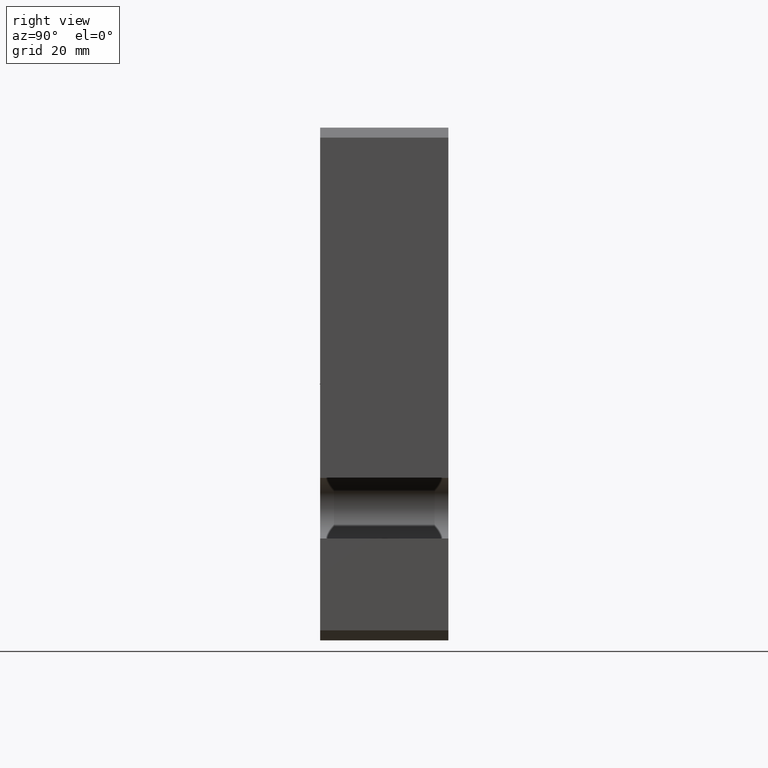
[diagram: clean part render]
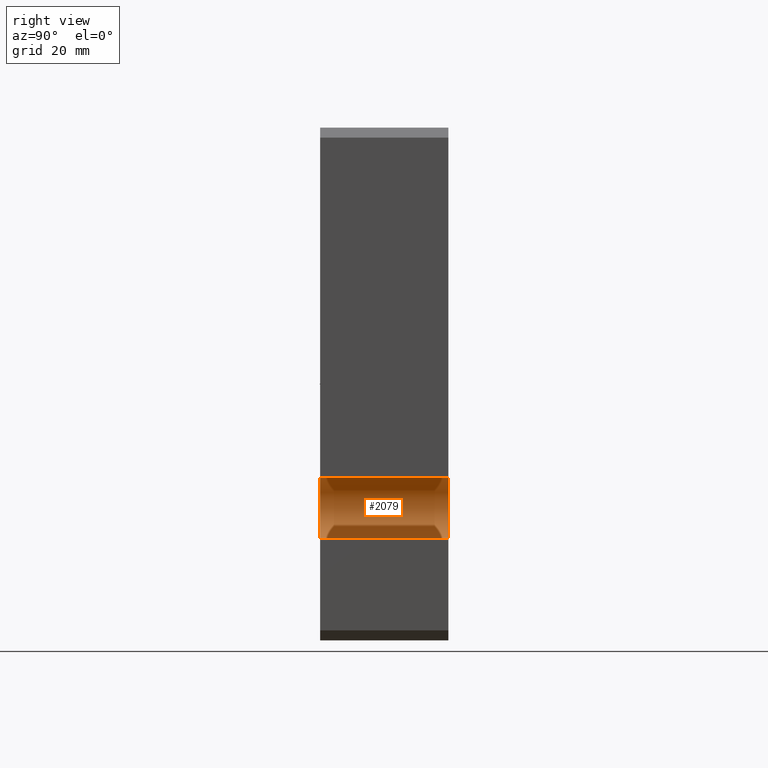
[diagram: same view with one face highlighted and labeled with its STEP entity id]
A machine part, right view. The second image highlights one B-rep face of the part: STEP entity #2079.
In plain terms, the highlighted cylindrical surface (edge-blend (fillet) strip) has radius 6 mm, axis along (0, 1, 0).
Its self-contained STEP definition (entity closure, byte-faithful):
#46=B_SPLINE_CURVE_WITH_KNOTS('',3,(#3356,#3357,#3358,#3359,#3360,#3361),
 .UNSPECIFIED.,.F.,.F.,(4,2,4),(3.98910257841494,4.01451856488543,4.31362570969608),
 .UNSPECIFIED.);
#49=B_SPLINE_CURVE_WITH_KNOTS('',3,(#3412,#3413,#3414,#3415,#3416,#3417),
 .UNSPECIFIED.,.F.,.F.,(4,2,4),(4.31362570969608,4.61273285450673,4.63814884097722),
 .UNSPECIFIED.);
#317=FACE_OUTER_BOUND('',#444,.T.);
#444=EDGE_LOOP('',(#1816,#1817,#1818,#1819,#1820,#1821,#1822));
#571=LINE('',#6136,#717);
#594=LINE('',#8078,#740);
#595=LINE('',#8079,#741);
#717=VECTOR('',#2626,10.);
#740=VECTOR('',#2691,10.);
#741=VECTOR('',#2692,10.);
#773=CIRCLE('',#2222,6.);
#777=CIRCLE('',#2238,6.);
#856=VERTEX_POINT('',#3353);
#857=VERTEX_POINT('',#3355);
#862=VERTEX_POINT('',#3410);
#952=VERTEX_POINT('',#5893);
#953=VERTEX_POINT('',#5895);
#969=VERTEX_POINT('',#6135);
#980=VERTEX_POINT('',#6386);
#1092=EDGE_CURVE('',#857,#856,#46,.T.);
#1098=EDGE_CURVE('',#856,#862,#49,.T.);
#1222=EDGE_CURVE('',#952,#953,#773,.T.);
#1244=EDGE_CURVE('',#969,#952,#571,.T.);
#1267=EDGE_CURVE('',#980,#969,#777,.T.);
#1280=EDGE_CURVE('',#862,#953,#594,.T.);
#1281=EDGE_CURVE('',#980,#857,#595,.T.);
#1816=ORIENTED_EDGE('',*,*,#1092,.T.);
#1817=ORIENTED_EDGE('',*,*,#1098,.T.);
#1818=ORIENTED_EDGE('',*,*,#1280,.T.);
#1819=ORIENTED_EDGE('',*,*,#1222,.F.);
#1820=ORIENTED_EDGE('',*,*,#1244,.F.);
#1821=ORIENTED_EDGE('',*,*,#1267,.F.);
#1822=ORIENTED_EDGE('',*,*,#1281,.T.);
#1966=CYLINDRICAL_SURFACE('',#2248,6.);
#2079=ADVANCED_FACE('',(#317),#1966,.F.);
#2222=AXIS2_PLACEMENT_3D('',#5896,#2596,#2597);
#2238=AXIS2_PLACEMENT_3D('',#6388,#2665,#2666);
#2248=AXIS2_PLACEMENT_3D('',#8077,#2689,#2690);
#2596=DIRECTION('center_axis',(0.,-1.,0.));
#2597=DIRECTION('ref_axis',(0.,0.,-1.));
#2626=DIRECTION('',(0.,1.,0.));
#2665=DIRECTION('center_axis',(0.,1.,0.));
#2666=DIRECTION('ref_axis',(0.,0.,-1.));
#2689=DIRECTION('center_axis',(0.,1.,0.));
#2690=DIRECTION('ref_axis',(0.,0.,-1.));
#2691=DIRECTION('',(0.,1.,0.));
#2692=DIRECTION('',(0.,1.,0.));
#3353=CARTESIAN_POINT('',(-8.7503,1.07160268865791E-15,-30.5646550537311));
#3355=CARTESIAN_POINT('',(-8.09999999999956,-3.31024924892597,-30.6));
#3356=CARTESIAN_POINT('Ctrl Pts',(-8.09999999999914,-3.31024924892581,-30.6));
#3357=CARTESIAN_POINT('Ctrl Pts',(-8.13406620699729,-3.22689109190047,-30.6));
#3358=CARTESIAN_POINT('Ctrl Pts',(-8.16686736845105,-3.14295253472238,-30.5997101076699));
#3359=CARTESIAN_POINT('Ctrl Pts',(-8.56910808511407,-2.0647414079324,-30.5931145501531));
#3360=CARTESIAN_POINT('Ctrl Pts',(-8.7503,-0.997023816035509,-30.5646550537311));
#3361=CARTESIAN_POINT('Ctrl Pts',(-8.7503,-5.55111512312578E-16,-30.5646550537311));
#3410=CARTESIAN_POINT('',(-8.09999999999956,3.31024924892597,-30.6));
#3412=CARTESIAN_POINT('Ctrl Pts',(-8.7503,-5.55111512312578E-16,-30.5646550537311));
#3413=CARTESIAN_POINT('Ctrl Pts',(-8.7503,0.997023816035508,-30.5646550537311));
#3414=CARTESIAN_POINT('Ctrl Pts',(-8.56910808511407,2.0647414079324,-30.5931145501531));
#3415=CARTESIAN_POINT('Ctrl Pts',(-8.16686736845106,3.14295253472237,-30.5997101076699));
#3416=CARTESIAN_POINT('Ctrl Pts',(-8.13406620699729,3.22689109190047,-30.6));
#3417=CARTESIAN_POINT('Ctrl Pts',(-8.09999999999914,3.31024924892581,-30.6));
#5893=CARTESIAN_POINT('',(-8.09999999999998,12.7,-18.6));
#5895=CARTESIAN_POINT('',(-8.09999999999998,12.7,-30.6));
#5896=CARTESIAN_POINT('Origin',(-8.09999999999998,12.7,-24.6));
#6135=CARTESIAN_POINT('',(-8.09999999999998,-12.7,-18.6));
#6136=CARTESIAN_POINT('',(-8.09999999999998,0.,-18.6));
#6386=CARTESIAN_POINT('',(-8.09999999999998,-12.7,-30.6));
#6388=CARTESIAN_POINT('Origin',(-8.09999999999998,-12.7,-24.6));
#8077=CARTESIAN_POINT('Origin',(-8.09999999999998,0.,-24.6));
#8078=CARTESIAN_POINT('',(-8.09999999999998,0.,-30.6));
#8079=CARTESIAN_POINT('',(-8.09999999999998,0.,-30.6));